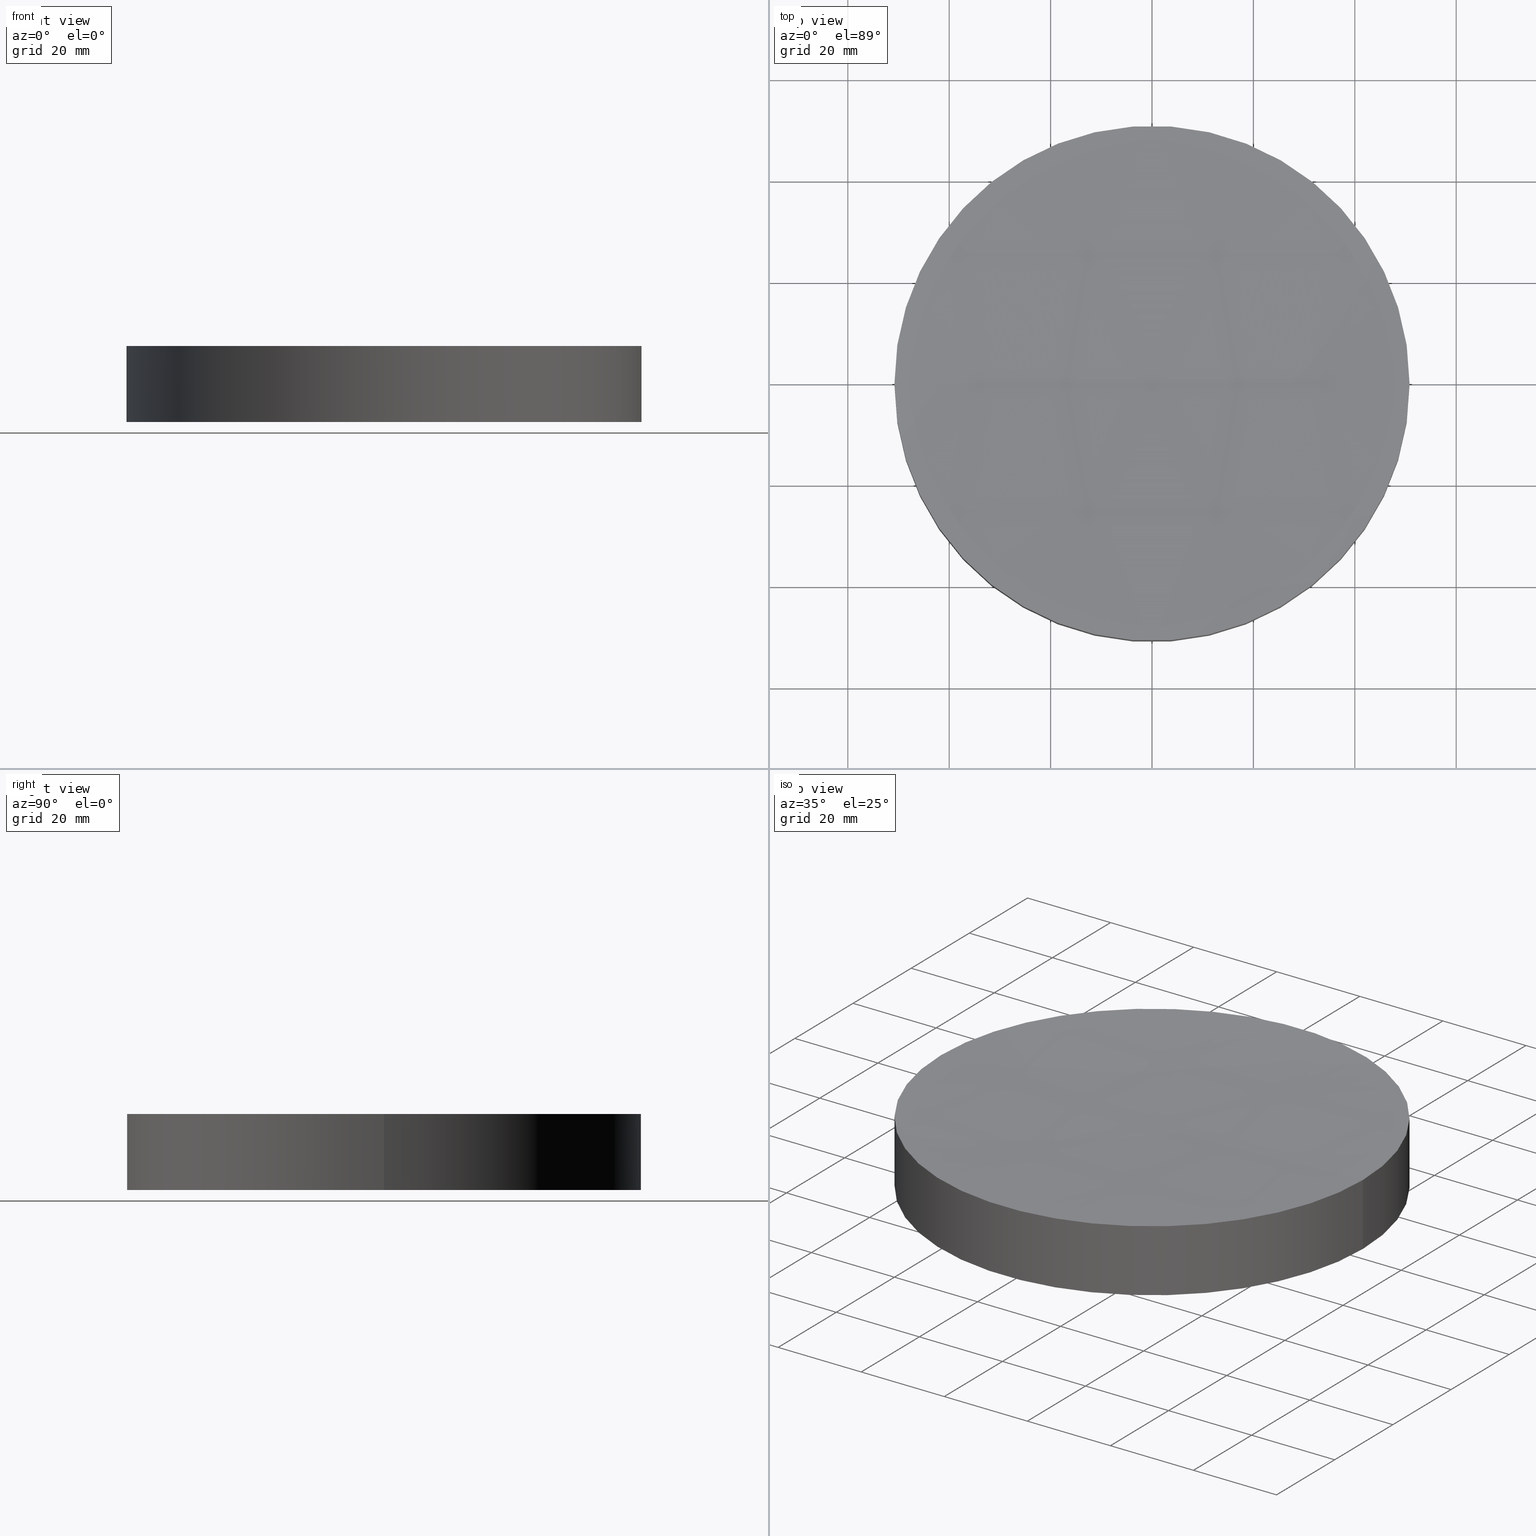
[diagram: canonical four-view strip — front | top / right | iso, engineering-drawing reading convention]
A machine part, canonical four-view strip (front | top / right | iso — engineering-drawing reading convention). The complete STEP part file that produces these views, byte-faithful:
ISO-10303-21;
HEADER;
FILE_DESCRIPTION (( 'STEP AP203' ),
    '1' );
FILE_NAME ('010-1820E_UVFS_PCV_window.STEP',
    '2021-02-26T06:28:08',
    ( '' ),
    ( '' ),
    'SwSTEP 2.0',
    'SolidWorks 2019',
    '' );
FILE_SCHEMA (( 'CONFIG_CONTROL_DESIGN' ));
ENDSEC;

DATA;
#1 = DATE_AND_TIME ( #131, #187 ) ;
#2 = APPROVAL_ROLE ( '' ) ;
#3 = COORDINATED_UNIVERSAL_TIME_OFFSET ( 2, 0, .AHEAD. ) ;
#4 = AXIS2_PLACEMENT_3D ( 'NONE', #156, #106, #155 ) ;
#5 = SECURITY_CLASSIFICATION ( '', '', #16 ) ;
#6 = APPROVAL ( #173, 'UNSPECIFIED' ) ;
#7 = PRODUCT ( '010-1820E_UVFS_PCV_window', '010-1820E_UVFS_PCV_window', '', ( #114 ) ) ;
#8 = DIRECTION ( 'NONE',  ( -0.000000000000000000, -0.000000000000000000, -1.000000000000000000 ) ) ;
#9 = DIRECTION ( 'NONE',  ( -0.000000000000000000, -0.000000000000000000, -1.000000000000000000 ) ) ;
#10 = CARTESIAN_POINT ( 'NONE',  ( 0.000000000000000000, 0.000000000000000000, 0.000000000000000000 ) ) ;
#11 = DIRECTION ( 'NONE',  ( 1.000000000000000000, 0.000000000000000000, 0.000000000000000000 ) ) ;
#12 = AXIS2_PLACEMENT_3D ( 'NONE', #59, #182, #157 ) ;
#13 = PERSON_AND_ORGANIZATION ( #20, #181 ) ;
#14 =( GEOMETRIC_REPRESENTATION_CONTEXT ( 3 ) GLOBAL_UNCERTAINTY_ASSIGNED_CONTEXT ( ( #85 ) ) GLOBAL_UNIT_ASSIGNED_CONTEXT ( ( #46, #116, #174 ) ) REPRESENTATION_CONTEXT ( 'NONE', 'WORKASPACE' ) );
#15 = CALENDAR_DATE ( 2021, 26, 2 ) ;
#16 = SECURITY_CLASSIFICATION_LEVEL ( 'unclassified' ) ;
#17 = COORDINATED_UNIVERSAL_TIME_OFFSET ( 2, 0, .AHEAD. ) ;
#18 = APPROVAL_STATUS ( 'not_yet_approved' ) ;
#19 = ORIENTED_EDGE ( 'NONE', *, *, #166, .F. ) ;
#20 = PERSON ( 'UNSPECIFIED', 'UNSPECIFIED', 'UNSPECIFIED', ('UNSPECIFIED'), ('UNSPECIFIED'), ('UNSPECIFIED') ) ;
#21 = ORIENTED_EDGE ( 'NONE', *, *, #28, .F. ) ;
#22 = EDGE_LOOP ( 'NONE', ( #188, #24, #135, #40 ) ) ;
#23 = AXIS2_PLACEMENT_3D ( 'NONE', #168, #45, #171 ) ;
#24 = ORIENTED_EDGE ( 'NONE', *, *, #36, .T. ) ;
#25 = PRODUCT_DEFINITION_FORMATION_WITH_SPECIFIED_SOURCE ( 'ANY', '', #7, .NOT_KNOWN. ) ;
#26 = DIRECTION ( 'NONE',  ( 1.000000000000000000, 0.000000000000000000, 0.000000000000000000 ) ) ;
#27 = CARTESIAN_POINT ( 'NONE',  ( 50.79999999999999716, 6.221205739668553730E-15, 0.000000000000000000 ) ) ;
#28 = EDGE_CURVE ( 'NONE', #84, #176, #86, .T. ) ;
#29 = AXIS2_PLACEMENT_3D ( 'NONE', #172, #47, #197 ) ;
#30 = DIRECTION ( 'NONE',  ( -1.000000000000000000, 0.000000000000000000, 0.000000000000000000 ) ) ;
#31 = CARTESIAN_POINT ( 'NONE',  ( 0.000000000000000000, 0.000000000000000000, 0.000000000000000000 ) ) ;
#32 = CARTESIAN_POINT ( 'NONE',  ( 50.80000000000032401, 6.221205739668593962E-15, 15.00000000000001421 ) ) ;
#33 = CIRCLE ( 'NONE', #104, 50.79999999999999716 ) ;
#34 = DATE_AND_TIME ( #186, #113 ) ;
#35 = PERSON_AND_ORGANIZATION_ROLE ( 'creator' ) ;
#36 = EDGE_CURVE ( 'NONE', #192, #84, #167, .T. ) ;
#37 = PERSON_AND_ORGANIZATION ( #20, #181 ) ;
#38 = DATE_TIME_ROLE ( 'classification_date' ) ;
#39 = ORIENTED_EDGE ( 'NONE', *, *, #28, .T. ) ;
#40 = ORIENTED_EDGE ( 'NONE', *, *, #123, .T. ) ;
#41 = VECTOR ( 'NONE', #8, 1000.000000000000000 ) ;
#42 = CC_DESIGN_APPROVAL ( #68, ( #25 ) ) ;
#43 = CARTESIAN_POINT ( 'NONE',  ( 0.000000000000000000, 0.000000000000000000, 0.000000000000000000 ) ) ;
#44 = ADVANCED_FACE ( 'NONE', ( #58 ), #110, .F. ) ;
#45 = DIRECTION ( 'NONE',  ( -0.000000000000000000, -0.000000000000000000, -1.000000000000000000 ) ) ;
#46 =( LENGTH_UNIT ( ) NAMED_UNIT ( * ) SI_UNIT ( .MILLI., .METRE. ) );
#47 = DIRECTION ( 'NONE',  ( 0.000000000000000000, 1.000000000000000000, -0.000000000000000000 ) ) ;
#48 = APPROVAL_DATE_TIME ( #62, #98 ) ;
#49 = PERSON_AND_ORGANIZATION ( #20, #181 ) ;
#50 = CC_DESIGN_PERSON_AND_ORGANIZATION_ASSIGNMENT ( #37, #97, ( #7 ) ) ;
#51 = APPROVAL_DATE_TIME ( #77, #68 ) ;
#52 = APPROVAL_PERSON_ORGANIZATION ( #146, #68, #80 ) ;
#53 = PRODUCT_RELATED_PRODUCT_CATEGORY ( 'detail', '', ( #7 ) ) ;
#54 = EDGE_LOOP ( 'NONE', ( #21, #133, #163 ) ) ;
#55 = ORIENTED_EDGE ( 'NONE', *, *, #83, .T. ) ;
#56 = CYLINDRICAL_SURFACE ( 'NONE', #4, 50.79999999999999716 ) ;
#57 = SPHERICAL_SURFACE ( 'NONE', #115, 800.0000000000000000 ) ;
#58 = FACE_OUTER_BOUND ( 'NONE', #88, .T. ) ;
#59 = CARTESIAN_POINT ( 'NONE',  ( 9.714451465470119729E-14, 0.000000000000000000, 813.3854708096836248 ) ) ;
#60 = CIRCLE ( 'NONE', #143, 50.79999999999999716 ) ;
#61 = DIRECTION ( 'NONE',  ( 0.000000000000000000, 0.000000000000000000, 1.000000000000000000 ) ) ;
#62 = DATE_AND_TIME ( #145, #144 ) ;
#63 = COORDINATED_UNIVERSAL_TIME_OFFSET ( 2, 0, .AHEAD. ) ;
#64 = ADVANCED_FACE ( 'NONE', ( #120 ), #57, .F. ) ;
#65 = COORDINATED_UNIVERSAL_TIME_OFFSET ( 2, 0, .AHEAD. ) ;
#66 = PERSON_AND_ORGANIZATION ( #20, #181 ) ;
#67 = CC_DESIGN_SECURITY_CLASSIFICATION ( #5, ( #25 ) ) ;
#68 = APPROVAL ( #18, 'UNSPECIFIED' ) ;
#69 = DIRECTION ( 'NONE',  ( 1.000000000000000000, 0.000000000000000000, 0.000000000000000000 ) ) ;
#70 = CC_DESIGN_PERSON_AND_ORGANIZATION_ASSIGNMENT ( #66, #99, ( #25 ) ) ;
#71 = DIRECTION ( 'NONE',  ( -0.000000000000000000, -0.000000000000000000, -1.000000000000000000 ) ) ;
#72 = MANIFOLD_SOLID_BREP ( 'Cut-Revolve1', #119 ) ;
#73 = CARTESIAN_POINT ( 'NONE',  ( 1.461303866205953070E-13, 0.000000000000000000, 13.38547080968355374 ) ) ;
#74 = DIRECTION ( 'NONE',  ( 0.000000000000000000, 0.000000000000000000, 1.000000000000000000 ) ) ;
#75 = APPROVAL_STATUS ( 'not_yet_approved' ) ;
#76 = CC_DESIGN_APPROVAL ( #6, ( #178 ) ) ;
#77 = DATE_AND_TIME ( #15, #117 ) ;
#78 = PERSON_AND_ORGANIZATION_ROLE ( 'classification_officer' ) ;
#79 = CARTESIAN_POINT ( 'NONE',  ( 0.000000000000000000, 0.000000000000000000, 0.000000000000000000 ) ) ;
#80 = APPROVAL_ROLE ( '' ) ;
#81 = ORIENTED_EDGE ( 'NONE', *, *, #93, .T. ) ;
#82 = APPROVAL_PERSON_ORGANIZATION ( #96, #6, #2 ) ;
#83 = EDGE_CURVE ( 'NONE', #84, #192, #158, .T. ) ;
#84 = VERTEX_POINT ( 'NONE', #94 ) ;
#85 = UNCERTAINTY_MEASURE_WITH_UNIT (LENGTH_MEASURE( 1.000000000000000082E-05 ), #46, 'distance_accuracy_value', 'NONE');
#86 = CIRCLE ( 'NONE', #12, 800.0000000000000000 ) ;
#87 = VERTEX_POINT ( 'NONE', #141 ) ;
#88 = EDGE_LOOP ( 'NONE', ( #137, #136 ) ) ;
#89 = DIRECTION ( 'NONE',  ( 0.000000000000000000, -1.000000000000000000, -0.000000000000000000 ) ) ;
#90 = CC_DESIGN_DATE_AND_TIME_ASSIGNMENT ( #1, #38, ( #5 ) ) ;
#91 = CYLINDRICAL_SURFACE ( 'NONE', #179, 50.79999999999999716 ) ;
#92 = CARTESIAN_POINT ( 'NONE',  ( -50.79999999999999716, 0.000000000000000000, 15.00000000000000000 ) ) ;
#93 = EDGE_CURVE ( 'NONE', #192, #102, #184, .T. ) ;
#94 = CARTESIAN_POINT ( 'NONE',  ( -50.80000000000013927, 0.000000000000000000, 15.00000000000001421 ) ) ;
#95 = AXIS2_PLACEMENT_3D ( 'NONE', #142, #183, #26 ) ;
#96 = PERSON_AND_ORGANIZATION ( #20, #181 ) ;
#97 = PERSON_AND_ORGANIZATION_ROLE ( 'design_owner' ) ;
#98 = APPROVAL ( #75, 'UNSPECIFIED' ) ;
#99 = PERSON_AND_ORGANIZATION_ROLE ( 'design_supplier' ) ;
#100 = APPLICATION_PROTOCOL_DEFINITION ( 'international standard', 'config_control_design', 1994, #109 ) ;
#101 = APPROVAL_DATE_TIME ( #34, #6 ) ;
#102 = VERTEX_POINT ( 'NONE', #27 ) ;
#103 = CC_DESIGN_PERSON_AND_ORGANIZATION_ASSIGNMENT ( #49, #148, ( #25 ) ) ;
#104 = AXIS2_PLACEMENT_3D ( 'NONE', #10, #74, #11 ) ;
#105 = APPROVAL_PERSON_ORGANIZATION ( #13, #98, #201 ) ;
#106 = DIRECTION ( 'NONE',  ( -0.000000000000000000, -0.000000000000000000, -1.000000000000000000 ) ) ;
#107 = FACE_OUTER_BOUND ( 'NONE', #54, .T. ) ;
#108 = CC_DESIGN_DATE_AND_TIME_ASSIGNMENT ( #175, #126, ( #178 ) ) ;
#109 = APPLICATION_CONTEXT ( 'configuration controlled 3d designs of mechanical parts and assemblies' ) ;
#110 = PLANE ( 'NONE',  #152 ) ;
#111 = CARTESIAN_POINT ( 'NONE',  ( 9.714451465470119729E-14, 0.000000000000000000, 813.3854708096836248 ) ) ;
#112 = APPLICATION_PROTOCOL_DEFINITION ( 'international standard', 'config_control_design', 1994, #164 ) ;
#113 = LOCAL_TIME ( 8, 28, 8.000000000000000000, #162 ) ;
#114 = MECHANICAL_CONTEXT ( 'NONE', #164, 'mechanical' ) ;
#115 = AXIS2_PLACEMENT_3D ( 'NONE', #111, #89, #169 ) ;
#116 =( NAMED_UNIT ( * ) PLANE_ANGLE_UNIT ( ) SI_UNIT ( $, .RADIAN. ) );
#117 = LOCAL_TIME ( 8, 28, 8.000000000000000000, #3 ) ;
#118 = ORIENTED_EDGE ( 'NONE', *, *, #161, .T. ) ;
#119 = CLOSED_SHELL ( 'NONE', ( #64, #140, #130, #44, #199 ) ) ;
#120 = FACE_OUTER_BOUND ( 'NONE', #193, .T. ) ;
#121 = CARTESIAN_POINT ( 'NONE',  ( 50.79999999999999716, 6.221205739668553730E-15, 15.00000000000000000 ) ) ;
#122 = LINE ( 'NONE', #92, #150 ) ;
#123 = EDGE_CURVE ( 'NONE', #87, #102, #60, .T. ) ;
#124 = FACE_OUTER_BOUND ( 'NONE', #22, .T. ) ;
#125 = AXIS2_PLACEMENT_3D ( 'NONE', #139, #198, #194 ) ;
#126 = DATE_TIME_ROLE ( 'creation_date' ) ;
#127 = SHAPE_DEFINITION_REPRESENTATION ( #180, #189 ) ;
#128 = CC_DESIGN_PERSON_AND_ORGANIZATION_ASSIGNMENT ( #185, #78, ( #5 ) ) ;
#129 = CALENDAR_DATE ( 2021, 26, 2 ) ;
#130 = ADVANCED_FACE ( 'NONE', ( #124 ), #56, .T. ) ;
#131 = CALENDAR_DATE ( 2021, 26, 2 ) ;
#132 = CIRCLE ( 'NONE', #29, 800.0000000000001137 ) ;
#133 = ORIENTED_EDGE ( 'NONE', *, *, #36, .F. ) ;
#134 = CC_DESIGN_APPROVAL ( #98, ( #5 ) ) ;
#135 = ORIENTED_EDGE ( 'NONE', *, *, #166, .T. ) ;
#136 = ORIENTED_EDGE ( 'NONE', *, *, #161, .F. ) ;
#137 = ORIENTED_EDGE ( 'NONE', *, *, #123, .F. ) ;
#138 = SPHERICAL_SURFACE ( 'NONE', #125, 800.0000000000000000 ) ;
#139 = CARTESIAN_POINT ( 'NONE',  ( 9.714451465470119729E-14, 0.000000000000000000, 813.3854708096836248 ) ) ;
#140 = ADVANCED_FACE ( 'NONE', ( #154 ), #91, .T. ) ;
#141 = CARTESIAN_POINT ( 'NONE',  ( -50.79999999999999716, 0.000000000000000000, 0.000000000000000000 ) ) ;
#142 = CARTESIAN_POINT ( 'NONE',  ( 9.714451465470119729E-14, 0.000000000000000000, 15.00000000000001421 ) ) ;
#143 = AXIS2_PLACEMENT_3D ( 'NONE', #43, #61, #69 ) ;
#144 = LOCAL_TIME ( 8, 28, 8.000000000000000000, #63 ) ;
#145 = CALENDAR_DATE ( 2021, 26, 2 ) ;
#146 = PERSON_AND_ORGANIZATION ( #20, #181 ) ;
#147 = CC_DESIGN_PERSON_AND_ORGANIZATION_ASSIGNMENT ( #159, #35, ( #178 ) ) ;
#148 = PERSON_AND_ORGANIZATION_ROLE ( 'creator' ) ;
#149 = DIRECTION ( 'NONE',  ( 0.000000000000000000, 0.000000000000000000, 1.000000000000000000 ) ) ;
#150 = VECTOR ( 'NONE', #71, 1000.000000000000000 ) ;
#151 = ORIENTED_EDGE ( 'NONE', *, *, #191, .F. ) ;
#152 = AXIS2_PLACEMENT_3D ( 'NONE', #31, #195, #153 ) ;
#153 = DIRECTION ( 'NONE',  ( 1.000000000000000000, 0.000000000000000000, -0.000000000000000000 ) ) ;
#154 = FACE_OUTER_BOUND ( 'NONE', #190, .T. ) ;
#155 = DIRECTION ( 'NONE',  ( -1.000000000000000000, 0.000000000000000000, 0.000000000000000000 ) ) ;
#156 = CARTESIAN_POINT ( 'NONE',  ( 0.000000000000000000, 0.000000000000000000, 15.00000000000000000 ) ) ;
#157 = DIRECTION ( 'NONE',  ( 1.000000000000000000, 1.224646799147353207E-16, 0.000000000000000000 ) ) ;
#158 = CIRCLE ( 'NONE', #95, 50.80000000000022453 ) ;
#159 = PERSON_AND_ORGANIZATION ( #20, #181 ) ;
#160 = DIRECTION ( 'NONE',  ( 1.000000000000000000, 0.000000000000000000, 0.000000000000000000 ) ) ;
#161 = EDGE_CURVE ( 'NONE', #102, #87, #33, .T. ) ;
#162 = COORDINATED_UNIVERSAL_TIME_OFFSET ( 2, 0, .AHEAD. ) ;
#163 = ORIENTED_EDGE ( 'NONE', *, *, #191, .T. ) ;
#164 = APPLICATION_CONTEXT ( 'configuration controlled 3d designs of mechanical parts and assemblies' ) ;
#165 = ORIENTED_EDGE ( 'NONE', *, *, #83, .F. ) ;
#166 = EDGE_CURVE ( 'NONE', #84, #87, #122, .T. ) ;
#167 = CIRCLE ( 'NONE', #23, 50.80000000000022453 ) ;
#168 = CARTESIAN_POINT ( 'NONE',  ( 9.714451465470119729E-14, 0.000000000000000000, 15.00000000000001421 ) ) ;
#169 = DIRECTION ( 'NONE',  ( 1.000000000000000000, 0.000000000000000000, 0.000000000000000000 ) ) ;
#170 = CARTESIAN_POINT ( 'NONE',  ( 0.000000000000000000, 0.000000000000000000, 15.00000000000000000 ) ) ;
#171 = DIRECTION ( 'NONE',  ( 1.000000000000000000, 0.000000000000000000, 0.000000000000000000 ) ) ;
#172 = CARTESIAN_POINT ( 'NONE',  ( 9.714451465470119729E-14, 0.000000000000000000, 813.3854708096836248 ) ) ;
#173 = APPROVAL_STATUS ( 'not_yet_approved' ) ;
#174 =( NAMED_UNIT ( * ) SI_UNIT ( $, .STERADIAN. ) SOLID_ANGLE_UNIT ( ) );
#175 = DATE_AND_TIME ( #129, #200 ) ;
#176 = VERTEX_POINT ( 'NONE', #73 ) ;
#177 = DESIGN_CONTEXT ( 'detailed design', #109, 'design' ) ;
#178 = PRODUCT_DEFINITION ( 'UNKNOWN', '', #25, #177 ) ;
#179 = AXIS2_PLACEMENT_3D ( 'NONE', #170, #9, #30 ) ;
#180 = PRODUCT_DEFINITION_SHAPE ( 'NONE', 'NONE',  #178 ) ;
#181 = ORGANIZATION ( 'UNSPECIFIED', 'UNSPECIFIED', '' ) ;
#182 = DIRECTION ( 'NONE',  ( 1.224646799147353207E-16, -1.000000000000000000, 0.000000000000000000 ) ) ;
#183 = DIRECTION ( 'NONE',  ( -0.000000000000000000, -0.000000000000000000, -1.000000000000000000 ) ) ;
#184 = LINE ( 'NONE', #121, #41 ) ;
#185 = PERSON_AND_ORGANIZATION ( #20, #181 ) ;
#186 = CALENDAR_DATE ( 2021, 26, 2 ) ;
#187 = LOCAL_TIME ( 8, 28, 8.000000000000000000, #65 ) ;
#188 = ORIENTED_EDGE ( 'NONE', *, *, #93, .F. ) ;
#189 = ADVANCED_BREP_SHAPE_REPRESENTATION ( '010-1820E_UVFS_PCV_window', ( #72, #196 ), #14 ) ;
#190 = EDGE_LOOP ( 'NONE', ( #55, #81, #118, #19 ) ) ;
#191 = EDGE_CURVE ( 'NONE', #192, #176, #132, .T. ) ;
#192 = VERTEX_POINT ( 'NONE', #32 ) ;
#193 = EDGE_LOOP ( 'NONE', ( #165, #39, #151 ) ) ;
#194 = DIRECTION ( 'NONE',  ( 1.000000000000000000, 0.000000000000000000, 0.000000000000000000 ) ) ;
#195 = DIRECTION ( 'NONE',  ( 0.000000000000000000, 0.000000000000000000, 1.000000000000000000 ) ) ;
#196 = AXIS2_PLACEMENT_3D ( 'NONE', #79, #149, #160 ) ;
#197 = DIRECTION ( 'NONE',  ( 0.000000000000000000, 0.000000000000000000, 1.000000000000000000 ) ) ;
#198 = DIRECTION ( 'NONE',  ( 0.000000000000000000, -1.000000000000000000, -0.000000000000000000 ) ) ;
#199 = ADVANCED_FACE ( 'NONE', ( #107 ), #138, .F. ) ;
#200 = LOCAL_TIME ( 8, 28, 8.000000000000000000, #17 ) ;
#201 = APPROVAL_ROLE ( '' ) ;
ENDSEC;
END-ISO-10303-21;
